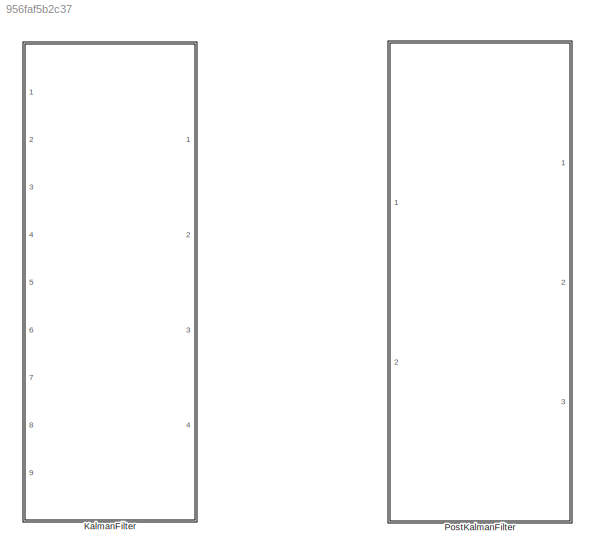
MODEL slx_956faf5b2c37
KIND library
CONFIG AbsTol = auto
CONFIG EnableMultiTasking = off
CONFIG FixedStep = auto
CONFIG MaxStep = auto
CONFIG MinStep = auto
CONFIG RelTol = 1e-3
CONFIG SampleTimeConstraint = Unconstrained
CONFIG Solver = VariableStepAuto
CONFIG SolverName = VariableStepAuto
CONFIG StartTime = 0.0
CONFIG StopTime = 10.0
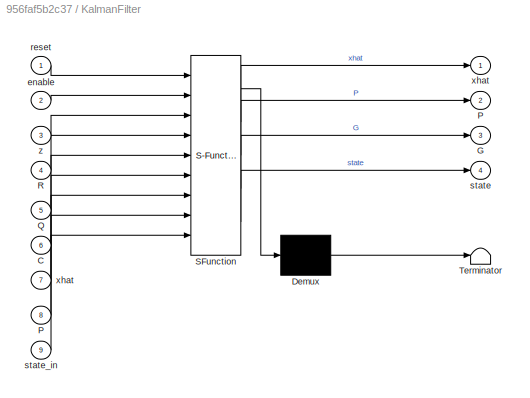
BLOCK [SubSystem] KalmanFilter
  ErrorFcn = Stateflow.Translate.translate
  PermitHierarchicalResolution = ExplicitOnly
  Ports = [9, 4]
  RequestExecContextInheritance = off
  SFBlockType = MATLAB Function
  TreatAsAtomicUnit = on
BLOCK [Demux] KalmanFilter/ Demux 
  Outputs = 1
  Ports = [1, 1]
BLOCK [S-Function] KalmanFilter/ SFunction 
  EnableBusSupport = off
  FunctionName = sf_sfun
  PortCounts = [9 5]
  Ports = [9, 5]
  SFcnIsStateOwnerBlock = off
  SFunctionDeploymentMode = off
  Tag = Stateflow S-Function 5
BLOCK [Terminator] KalmanFilter/ Terminator 
BLOCK [Inport] KalmanFilter/C
  IconDisplay = Port number
  Port = 6
BLOCK [Outport] KalmanFilter/G
  IconDisplay = Port number
  Port = 3
BLOCK [Outport] KalmanFilter/P
  IconDisplay = Port number
  Port = 2
BLOCK [Inport] KalmanFilter/P 
  IconDisplay = Port number
  Port = 8
BLOCK [Inport] KalmanFilter/Q
  IconDisplay = Port number
  Port = 5
BLOCK [Inport] KalmanFilter/R
  IconDisplay = Port number
  Port = 4
BLOCK [Inport] KalmanFilter/enable
  IconDisplay = Port number
  Port = 2
BLOCK [Inport] KalmanFilter/reset
  IconDisplay = Port number
BLOCK [Outport] KalmanFilter/state
  IconDisplay = Port number
  Port = 4
BLOCK [Inport] KalmanFilter/state_in
  IconDisplay = Port number
  Port = 9
BLOCK [Outport] KalmanFilter/xhat
  IconDisplay = Port number
BLOCK [Inport] KalmanFilter/xhat 
  IconDisplay = Port number
  Port = 7
BLOCK [Inport] KalmanFilter/z
  IconDisplay = Port number
  Port = 3
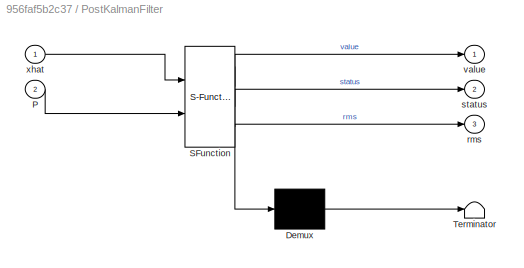
BLOCK [SubSystem] PostKalmanFilter
  ErrorFcn = Stateflow.Translate.translate
  PermitHierarchicalResolution = ExplicitOnly
  Ports = [2, 3]
  RequestExecContextInheritance = off
  SFBlockType = MATLAB Function
  TreatAsAtomicUnit = on
BLOCK [Demux] PostKalmanFilter/ Demux 
  Outputs = 1
  Ports = [1, 1]
BLOCK [S-Function] PostKalmanFilter/ SFunction 
  EnableBusSupport = off
  FunctionName = sf_sfun
  PortCounts = [2 4]
  Ports = [2, 4]
  SFcnIsStateOwnerBlock = off
  SFunctionDeploymentMode = off
  Tag = Stateflow S-Function 6
BLOCK [Terminator] PostKalmanFilter/ Terminator 
BLOCK [Inport] PostKalmanFilter/P
  IconDisplay = Port number
  Port = 2
BLOCK [Outport] PostKalmanFilter/rms
  IconDisplay = Port number
  Port = 3
BLOCK [Outport] PostKalmanFilter/status
  IconDisplay = Port number
  Port = 2
BLOCK [Outport] PostKalmanFilter/value
  IconDisplay = Port number
BLOCK [Inport] PostKalmanFilter/xhat
  IconDisplay = Port number
CHART KalmanFilter states=1 transitions=1
  STATE_LABEL 'eML_blk_kernel()'
  STATE_LABEL 'SCRIPT:\nfunction [xhat,P,G,state]  = KalmanFilter(reset,enable,z,R,Q,C,xhat,P,state_in)\nstate = state_in;\nif(reset == uint8(1))\n    state.initialized = uint8(0);\n    state.update_counter = uint32(0);\nend\nif(enable == uint8(1))\n    if(state.initialized==0)\n        xhat = sum(z)/length(z);\n        state.initialized=uint8(1);\n        P = 1;\n    end\n    state.update_counter = state.update_counter+1;\n\n...<+207ch>'
CHART PostKalmanFilter states=1 transitions=1
  STATE_LABEL 'eML_blk_kernel()'
  STATE_LABEL 'SCRIPT:\nfunction [value,status, rms]  = PostKalmanFilter(xhat,P)\n\nvalue =xhat;\nstatus = uint8(SignalState.SIGNALSTATE_UPDATED_);\nrms = P;'
